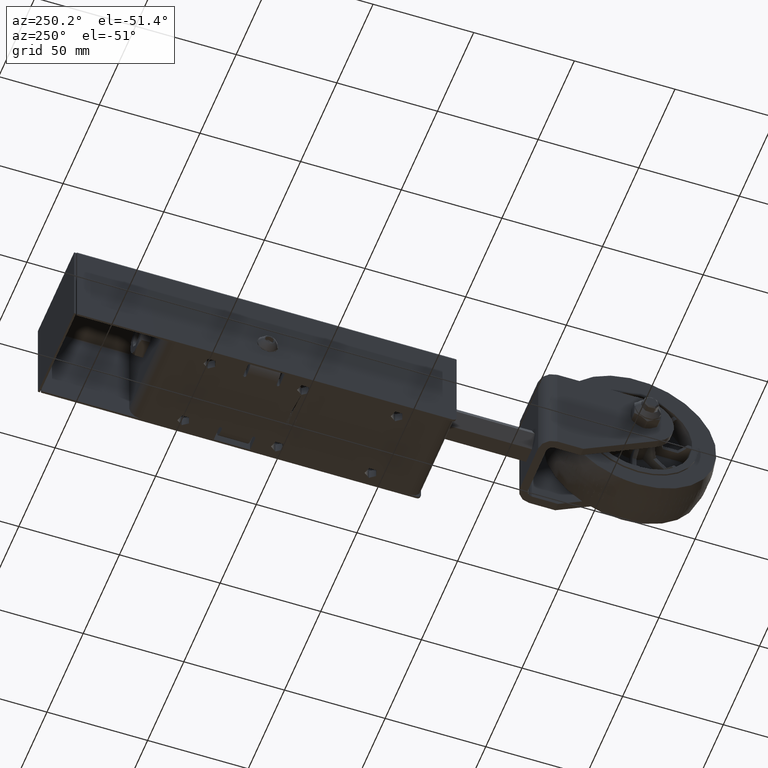
[diagram: clean part render]
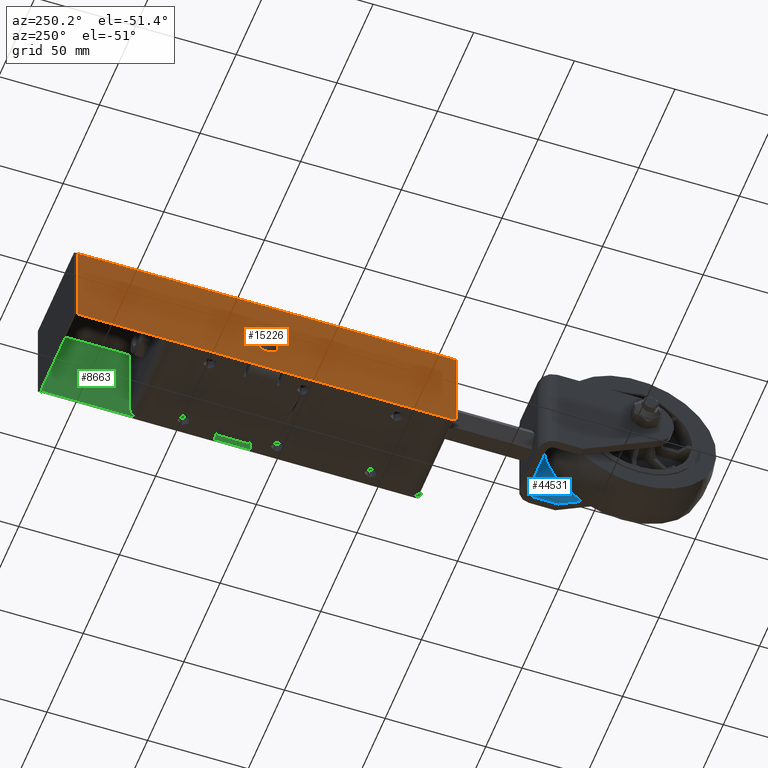
[diagram: same view with three faces highlighted in distinct colors, each labeled with its STEP entity id]
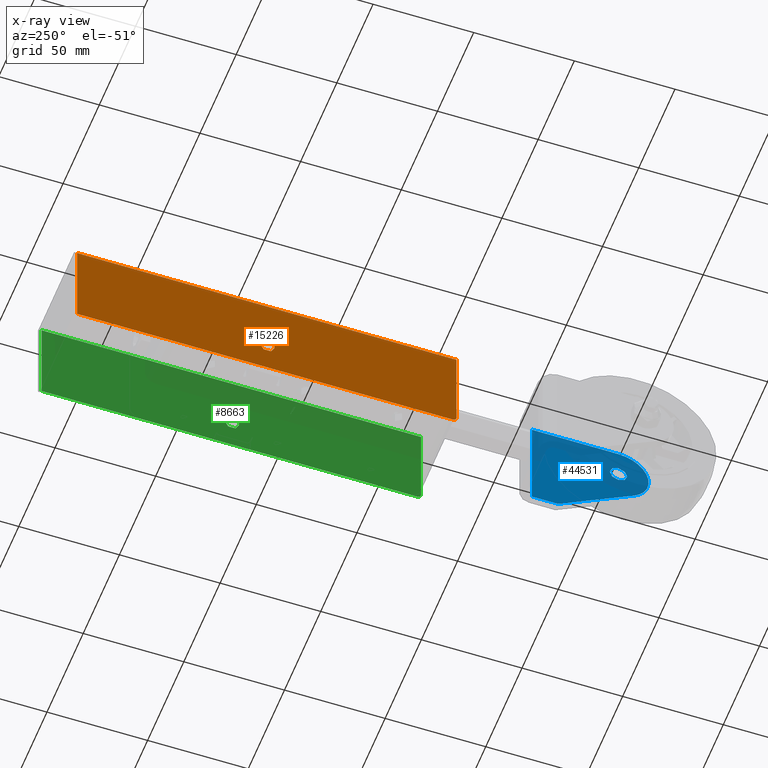
[diagram: x-ray of the same camera — body ghosted, the three highlighted faces saturated]
A machine part, auxiliary view with three faces highlighted in distinct colors.
The next image is the same camera in x-ray (body ghosted, the three faces saturated) — at least one of them is partly hidden behind the body in this view.
Their STEP definitions:

[orange] entity #15226 — the highlighted planar face has unit normal (1, -0, -0).
#41 = CARTESIAN_POINT ( 'NONE',  ( -25.00000000000000000, -95.00000000000000000, 9.020562075079396900E-014 ) ) ;
#667 = CARTESIAN_POINT ( 'NONE',  ( -25.00000000000000000, 93.50000000000000000, 6.245004513516505500E-014 ) ) ;
#1715 = DIRECTION ( 'NONE',  ( -3.469446951953613800E-015, -3.016910393003142400E-016, -1.000000000000000000 ) ) ;
#2481 = EDGE_CURVE ( 'NONE', #22862, #49787, #61392, .T. ) ;
#4393 = CARTESIAN_POINT ( 'NONE',  ( -25.00000000000021700, 2.549999999999996700, -30.05000000000017500 ) ) ;
#4629 = VERTEX_POINT ( 'NONE', #68141 ) ;
#4780 = DIRECTION ( 'NONE',  ( -1.000000000000000000, 4.770178037591663300E-031, 3.469446951953613800E-015 ) ) ;
#7338 = ORIENTED_EDGE ( 'NONE', *, *, #2481, .T. ) ;
#8439 = CARTESIAN_POINT ( 'NONE',  ( -25.00000000000000000, -95.00000000000000000, -0.4999999999999935100 ) ) ;
#8942 = CARTESIAN_POINT ( 'NONE',  ( -25.00000000000010700, -4.549999999999998900, -30.05000000000017500 ) ) ;
#9896 = VECTOR ( 'NONE', #39510, 1000.000000000000000 ) ;
#10057 = EDGE_CURVE ( 'NONE', #20653, #69182, #66241, .T. ) ;
#12592 = AXIS2_PLACEMENT_3D ( 'NONE', #18436, #25021, #13130 ) ;
#13130 = DIRECTION ( 'NONE',  ( 3.909236002201254400E-015, 0.0000000000000000000, -1.000000000000000000 ) ) ;
#13315 = VECTOR ( 'NONE', #45256, 1000.000000000000000 ) ;
#13935 = EDGE_CURVE ( 'NONE', #4629, #41953, #72574, .T. ) ;
#15226 = ADVANCED_FACE ( 'NONE', ( #43895, #61002 ), #63966, .F. ) ;
#18280 = AXIS2_PLACEMENT_3D ( 'NONE', #69297, #26829, #69823 ) ;
#18436 = CARTESIAN_POINT ( 'NONE',  ( -25.00000000000021700, -1.000000000000000900, -30.05000000000017800 ) ) ;
#19350 = ORIENTED_EDGE ( 'NONE', *, *, #34964, .T. ) ;
#20649 = VECTOR ( 'NONE', #78487, 1000.000000000000000 ) ;
#20653 = VERTEX_POINT ( 'NONE', #4393 ) ;
#22299 = VERTEX_POINT ( 'NONE', #59851 ) ;
#22535 = EDGE_LOOP ( 'NONE', ( #34271, #71550, #7338, #30661, #19350 ) ) ;
#22862 = VERTEX_POINT ( 'NONE', #71520 ) ;
#25021 = DIRECTION ( 'NONE',  ( 1.000000000000000000, 5.108567491743330500E-031, 3.469446951953613800E-015 ) ) ;
#26566 = LINE ( 'NONE', #8439, #13315 ) ;
#26829 = DIRECTION ( 'NONE',  ( 1.000000000000000000, -4.770178037591663300E-031, -3.469446951953613800E-015 ) ) ;
#27347 = VERTEX_POINT ( 'NONE', #43532 ) ;
#27743 = EDGE_LOOP ( 'NONE', ( #40878, #50758, #56109, #41837 ) ) ;
#28030 = CIRCLE ( 'NONE', #12592, 3.550000000000001200 ) ;
#28310 = CARTESIAN_POINT ( 'NONE',  ( -25.00000000000015300, -93.00000000000000000, -44.00000000000000000 ) ) ;
#29079 = LINE ( 'NONE', #667, #65159 ) ;
#29511 = EDGE_CURVE ( 'NONE', #41953, #20653, #28030, .T. ) ;
#29570 = CARTESIAN_POINT ( 'NONE',  ( -25.00000000000016000, 93.50000000000000000, -46.00000000000002800 ) ) ;
#30661 = ORIENTED_EDGE ( 'NONE', *, *, #59454, .F. ) ;
#32872 = CARTESIAN_POINT ( 'NONE',  ( -25.00000000000016000, -6.938893903907228400E-015, -46.00000000000001400 ) ) ;
#34271 = ORIENTED_EDGE ( 'NONE', *, *, #55324, .T. ) ;
#34964 = EDGE_CURVE ( 'NONE', #22299, #73614, #29079, .T. ) ;
#39510 = DIRECTION ( 'NONE',  ( 3.383894541516681100E-032, -1.000000000000000000, 1.472444329741587200E-016 ) ) ;
#40287 = VECTOR ( 'NONE', #54734, 1000.000000000000000 ) ;
#40574 = CIRCLE ( 'NONE', #72403, 3.549999999999997600 ) ;
#40878 = ORIENTED_EDGE ( 'NONE', *, *, #10057, .T. ) ;
#41837 = ORIENTED_EDGE ( 'NONE', *, *, #29511, .T. ) ;
#41953 = VERTEX_POINT ( 'NONE', #8942 ) ;
#42598 = CARTESIAN_POINT ( 'NONE',  ( -25.00000000000000000, -95.00000000000000000, -0.4999999999999935100 ) ) ;
#43532 = CARTESIAN_POINT ( 'NONE',  ( -25.00000000000016000, -93.00000000000000000, -46.00000000000000000 ) ) ;
#43895 = FACE_BOUND ( 'NONE', #27743, .T. ) ;
#45256 = DIRECTION ( 'NONE',  ( -3.001814823162472300E-032, -1.000000000000000000, 1.288388788523889100E-016 ) ) ;
#46230 = EDGE_CURVE ( 'NONE', #27347, #22862, #68690, .T. ) ;
#49227 = DIRECTION ( 'NONE',  ( 3.909236002201258300E-015, 0.0000000000000000000, -1.000000000000000000 ) ) ;
#49787 = VERTEX_POINT ( 'NONE', #42598 ) ;
#50730 = EDGE_CURVE ( 'NONE', #69182, #4629, #40574, .T. ) ;
#50758 = ORIENTED_EDGE ( 'NONE', *, *, #50730, .T. ) ;
#54734 = DIRECTION ( 'NONE',  ( 3.304235192336779100E-015, 0.0000000000000000000, -1.000000000000000000 ) ) ;
#55324 = EDGE_CURVE ( 'NONE', #73614, #27347, #76269, .T. ) ;
#56109 = ORIENTED_EDGE ( 'NONE', *, *, #13935, .T. ) ;
#59454 = EDGE_CURVE ( 'NONE', #22299, #49787, #26566, .T. ) ;
#59851 = CARTESIAN_POINT ( 'NONE',  ( -25.00000000000000000, 93.50000000000000000, -0.5000000000000213200 ) ) ;
#61002 = FACE_OUTER_BOUND ( 'NONE', #22535, .T. ) ;
#61392 = LINE ( 'NONE', #41, #20649 ) ;
#61435 = CARTESIAN_POINT ( 'NONE',  ( -25.00000000000022400, 2.549999999999996700, -27.95000000000017700 ) ) ;
#63966 = PLANE ( 'NONE',  #18280 ) ;
#64151 = DIRECTION ( 'NONE',  ( -3.469446951953611000E-015, 0.0000000000000000000, -1.000000000000000000 ) ) ;
#65159 = VECTOR ( 'NONE', #1715, 1000.000000000000000 ) ;
#65316 = VECTOR ( 'NONE', #74169, 1000.000000000000000 ) ;
#66241 = LINE ( 'NONE', #61435, #65316 ) ;
#68066 = CARTESIAN_POINT ( 'NONE',  ( -25.00000000000022400, -1.000000000000000900, -27.95000000000017700 ) ) ;
#68141 = CARTESIAN_POINT ( 'NONE',  ( -25.00000000000022400, -4.549999999999998900, -27.95000000000017700 ) ) ;
#68690 = CIRCLE ( 'NONE', #76182, 2.000000000000001800 ) ;
#69182 = VERTEX_POINT ( 'NONE', #69212 ) ;
#69212 = CARTESIAN_POINT ( 'NONE',  ( -25.00000000000022400, 2.549999999999996700, -27.95000000000017700 ) ) ;
#69297 = CARTESIAN_POINT ( 'NONE',  ( -25.00000000000000000, 0.0000000000000000000, 9.020562075079396900E-014 ) ) ;
#69823 = DIRECTION ( 'NONE',  ( -3.469446951953613800E-015, 0.0000000000000000000, -1.000000000000000000 ) ) ;
#71520 = CARTESIAN_POINT ( 'NONE',  ( -25.00000000000015300, -95.00000000000000000, -44.00000000000000000 ) ) ;
#71550 = ORIENTED_EDGE ( 'NONE', *, *, #46230, .T. ) ;
#72403 = AXIS2_PLACEMENT_3D ( 'NONE', #68066, #74407, #49227 ) ;
#72574 = LINE ( 'NONE', #72809, #40287 ) ;
#72809 = CARTESIAN_POINT ( 'NONE',  ( -25.00000000000022400, -4.549999999999998900, -27.95000000000017700 ) ) ;
#73614 = VERTEX_POINT ( 'NONE', #29570 ) ;
#74169 = DIRECTION ( 'NONE',  ( -3.304235192336779100E-015, -2.065146995210486900E-016, 1.000000000000000000 ) ) ;
#74407 = DIRECTION ( 'NONE',  ( 1.000000000000000000, 5.108567491743330500E-031, 3.469446951953613800E-015 ) ) ;
#76182 = AXIS2_PLACEMENT_3D ( 'NONE', #28310, #4780, #64151 ) ;
#76269 = LINE ( 'NONE', #32872, #9896 ) ;
#78487 = DIRECTION ( 'NONE',  ( 3.469446951953613800E-015, 0.0000000000000000000, 1.000000000000000000 ) ) ;

[blue] entity #44531 — the highlighted planar face has unit normal (1, -0, 0).
#493 = AXIS2_PLACEMENT_3D ( 'NONE', #2067, #45227, #8936 ) ;
#917 = VERTEX_POINT ( 'NONE', #30242 ) ;
#2067 = CARTESIAN_POINT ( 'NONE',  ( -18.55000000000000100, -50.00000000000001400, 15.50000000000000000 ) ) ;
#2743 = LINE ( 'NONE', #36869, #35996 ) ;
#3925 = ORIENTED_EDGE ( 'NONE', *, *, #6207, .F. ) ;
#4998 = DIRECTION ( 'NONE',  ( 0.0000000000000000000, 0.0000000000000000000, 1.000000000000000000 ) ) ;
#5034 = AXIS2_PLACEMENT_3D ( 'NONE', #16641, #4998, #28795 ) ;
#5114 = EDGE_CURVE ( 'NONE', #917, #24596, #63581, .T. ) ;
#6207 = EDGE_CURVE ( 'NONE', #24596, #18988, #51153, .T. ) ;
#8482 = DIRECTION ( 'NONE',  ( 1.000000000000000000, 0.0000000000000000000, 0.0000000000000000000 ) ) ;
#8936 = DIRECTION ( 'NONE',  ( 1.000000000000000000, 0.0000000000000000000, 0.0000000000000000000 ) ) ;
#13625 = CARTESIAN_POINT ( 'NONE',  ( 16.44999999999999600, -6.999999999999999100, 15.50000000000000000 ) ) ;
#16641 = CARTESIAN_POINT ( 'NONE',  ( -18.55000000000000100, -50.00000000000001400, 15.50000000000000000 ) ) ;
#18988 = VERTEX_POINT ( 'NONE', #57164 ) ;
#19379 = CARTESIAN_POINT ( 'NONE',  ( -33.55000000000000400, -50.00000000000001400, 15.50000000000000000 ) ) ;
#22677 = EDGE_CURVE ( 'NONE', #18988, #66774, #68466, .T. ) ;
#24445 = ORIENTED_EDGE ( 'NONE', *, *, #78081, .T. ) ;
#24596 = VERTEX_POINT ( 'NONE', #19379 ) ;
#24690 = CARTESIAN_POINT ( 'NONE',  ( -14.20000000000000300, -50.00000000000001400, 15.50000000000000000 ) ) ;
#25576 = EDGE_CURVE ( 'NONE', #66774, #52184, #2743, .T. ) ;
#26978 = CARTESIAN_POINT ( 'NONE',  ( -18.55000000000000100, -50.00000000000001400, 15.50000000000000000 ) ) ;
#27554 = ORIENTED_EDGE ( 'NONE', *, *, #5114, .F. ) ;
#27897 = EDGE_LOOP ( 'NONE', ( #24445 ) ) ;
#28756 = DIRECTION ( 'NONE',  ( 0.5061715907008166300, 0.8624327920292717000, 0.0000000000000000000 ) ) ;
#28795 = DIRECTION ( 'NONE',  ( 1.000000000000000000, 0.0000000000000000000, -0.0000000000000000000 ) ) ;
#29168 = DIRECTION ( 'NONE',  ( 1.000000000000000000, -0.0000000000000000000, -0.0000000000000000000 ) ) ;
#30242 = CARTESIAN_POINT ( 'NONE',  ( -33.55000000000001100, -7.000000000000000000, 15.50000000000000000 ) ) ;
#30483 = DIRECTION ( 'NONE',  ( 0.0000000000000000000, 1.000000000000000000, 0.0000000000000000000 ) ) ;
#35996 = VECTOR ( 'NONE', #30483, 1000.000000000000000 ) ;
#36869 = CARTESIAN_POINT ( 'NONE',  ( 16.44999999999999600, -20.00000000000000000, 15.50000000000000000 ) ) ;
#37459 = LINE ( 'NONE', #59615, #47862 ) ;
#40005 = VECTOR ( 'NONE', #28756, 1000.000000000000000 ) ;
#40849 = VECTOR ( 'NONE', #45206, 1000.000000000000000 ) ;
#41738 = FACE_BOUND ( 'NONE', #27897, .T. ) ;
#43852 = CARTESIAN_POINT ( 'NONE',  ( 16.44999999999999600, -20.00000000000000000, 15.50000000000000000 ) ) ;
#44531 = ADVANCED_FACE ( 'NONE', ( #75822, #41738 ), #65427, .F. ) ;
#45206 = DIRECTION ( 'NONE',  ( 1.387778780781445200E-016, -1.000000000000000000, 0.0000000000000000000 ) ) ;
#45227 = DIRECTION ( 'NONE',  ( 0.0000000000000000000, 0.0000000000000000000, 1.000000000000000000 ) ) ;
#47862 = VECTOR ( 'NONE', #29168, 1000.000000000000000 ) ;
#50849 = DIRECTION ( 'NONE',  ( 0.0000000000000000000, 0.0000000000000000000, 1.000000000000000000 ) ) ;
#51153 = CIRCLE ( 'NONE', #67174, 15.00000000000000400 ) ;
#52184 = VERTEX_POINT ( 'NONE', #13625 ) ;
#55801 = EDGE_LOOP ( 'NONE', ( #27554, #64463, #75939, #69201, #3925 ) ) ;
#56191 = CIRCLE ( 'NONE', #493, 4.349999999999997900 ) ;
#57164 = CARTESIAN_POINT ( 'NONE',  ( -5.613508119560923300, -57.59257386051226700, 15.50000000000000000 ) ) ;
#57662 = CARTESIAN_POINT ( 'NONE',  ( -5.613508119560925100, -57.59257386051226700, 15.50000000000000000 ) ) ;
#59615 = CARTESIAN_POINT ( 'NONE',  ( -18.55000000000000100, -6.999999999999999100, 15.50000000000000000 ) ) ;
#63581 = LINE ( 'NONE', #63739, #40849 ) ;
#63739 = CARTESIAN_POINT ( 'NONE',  ( -33.55000000000001100, 0.0000000000000000000, 15.50000000000000000 ) ) ;
#64463 = ORIENTED_EDGE ( 'NONE', *, *, #75631, .T. ) ;
#65427 = PLANE ( 'NONE',  #5034 ) ;
#66774 = VERTEX_POINT ( 'NONE', #43852 ) ;
#67174 = AXIS2_PLACEMENT_3D ( 'NONE', #26978, #50849, #8482 ) ;
#68466 = LINE ( 'NONE', #57662, #40005 ) ;
#69201 = ORIENTED_EDGE ( 'NONE', *, *, #22677, .F. ) ;
#69409 = VERTEX_POINT ( 'NONE', #24690 ) ;
#75631 = EDGE_CURVE ( 'NONE', #917, #52184, #37459, .T. ) ;
#75822 = FACE_OUTER_BOUND ( 'NONE', #55801, .T. ) ;
#75939 = ORIENTED_EDGE ( 'NONE', *, *, #25576, .F. ) ;
#78081 = EDGE_CURVE ( 'NONE', #69409, #69409, #56191, .T. ) ;

[green] entity #8663 — the highlighted planar face has unit normal (-1, -0, -0).
#80 = EDGE_CURVE ( 'NONE', #61148, #8105, #76790, .T. ) ;
#2222 = CARTESIAN_POINT ( 'NONE',  ( 24.00000000000016000, -95.00000000000000000, -46.00000000000000700 ) ) ;
#2371 = EDGE_CURVE ( 'NONE', #8105, #69077, #52883, .T. ) ;
#2635 = VECTOR ( 'NONE', #28249, 1000.000000000000000 ) ;
#2838 = EDGE_CURVE ( 'NONE', #69408, #74545, #36791, .T. ) ;
#3639 = VECTOR ( 'NONE', #65518, 1000.000000000000000 ) ;
#5264 = EDGE_LOOP ( 'NONE', ( #16493, #54454, #46053, #71267, #31851 ) ) ;
#5871 = EDGE_CURVE ( 'NONE', #69077, #7663, #50279, .T. ) ;
#6796 = LINE ( 'NONE', #76533, #11579 ) ;
#7557 = CARTESIAN_POINT ( 'NONE',  ( 24.00000000000016000, -93.00000000000000000, -46.00000000000000700 ) ) ;
#7663 = VERTEX_POINT ( 'NONE', #62234 ) ;
#8105 = VERTEX_POINT ( 'NONE', #66742 ) ;
#8663 = ADVANCED_FACE ( 'NONE', ( #46421, #14193 ), #51309, .T. ) ;
#8979 = VECTOR ( 'NONE', #26415, 1000.000000000000000 ) ;
#9227 = DIRECTION ( 'NONE',  ( -3.469446951953613800E-015, 0.0000000000000000000, 1.000000000000000000 ) ) ;
#9630 = EDGE_CURVE ( 'NONE', #51480, #69408, #45423, .T. ) ;
#11579 = VECTOR ( 'NONE', #28241, 1000.000000000000000 ) ;
#12007 = CIRCLE ( 'NONE', #41927, 2.000000000000001800 ) ;
#14193 = FACE_OUTER_BOUND ( 'NONE', #5264, .T. ) ;
#15844 = CARTESIAN_POINT ( 'NONE',  ( 24.00000000000000400, 93.50000000000000000, -0.5000000000000213200 ) ) ;
#16493 = ORIENTED_EDGE ( 'NONE', *, *, #39167, .F. ) ;
#17265 = DIRECTION ( 'NONE',  ( -1.000000000000000000, -5.108567491743330500E-031, -3.469446951953613800E-015 ) ) ;
#19818 = VECTOR ( 'NONE', #32875, 1000.000000000000000 ) ;
#21682 = ORIENTED_EDGE ( 'NONE', *, *, #80, .F. ) ;
#22698 = EDGE_CURVE ( 'NONE', #7663, #61148, #6796, .T. ) ;
#23604 = ORIENTED_EDGE ( 'NONE', *, *, #22698, .F. ) ;
#24891 = CARTESIAN_POINT ( 'NONE',  ( 24.00000000000009600, -1.000000000000000900, -27.95000000000000600 ) ) ;
#26412 = DIRECTION ( 'NONE',  ( -1.000000000000000000, -5.108567491743330500E-031, -3.469446951953613800E-015 ) ) ;
#26415 = DIRECTION ( 'NONE',  ( 8.758115402030106700E-047, 1.000000000000000000, -1.472444329741587200E-016 ) ) ;
#27275 = CARTESIAN_POINT ( 'NONE',  ( 24.00000000000009600, -4.549999999999998900, -27.95000000000000600 ) ) ;
#28241 = DIRECTION ( 'NONE',  ( 3.469446951953613800E-015, 2.065146995210486900E-016, -1.000000000000000000 ) ) ;
#28249 = DIRECTION ( 'NONE',  ( 6.385709364679144500E-032, -1.000000000000000000, 1.288388788523889100E-016 ) ) ;
#29166 = AXIS2_PLACEMENT_3D ( 'NONE', #44979, #26412, #9227 ) ;
#30933 = EDGE_CURVE ( 'NONE', #74545, #62062, #45018, .T. ) ;
#31617 = DIRECTION ( 'NONE',  ( 3.469446951953613800E-015, -0.0000000000000000000, -1.000000000000000000 ) ) ;
#31851 = ORIENTED_EDGE ( 'NONE', *, *, #9630, .F. ) ;
#32875 = DIRECTION ( 'NONE',  ( -3.469446951953613800E-015, -0.0000000000000000000, 1.000000000000000000 ) ) ;
#36503 = VERTEX_POINT ( 'NONE', #7557 ) ;
#36535 = VECTOR ( 'NONE', #31617, 1000.000000000000000 ) ;
#36791 = LINE ( 'NONE', #15844, #2635 ) ;
#37169 = CARTESIAN_POINT ( 'NONE',  ( 24.00000000000009200, 2.549999999999996700, -30.05000000000000400 ) ) ;
#37679 = AXIS2_PLACEMENT_3D ( 'NONE', #24891, #49283, #73433 ) ;
#38496 = DIRECTION ( 'NONE',  ( -3.909236002201258300E-015, 0.0000000000000000000, 1.000000000000000000 ) ) ;
#38890 = EDGE_LOOP ( 'NONE', ( #72222, #77304, #21682, #23604 ) ) ;
#39167 = EDGE_CURVE ( 'NONE', #36503, #51480, #72515, .T. ) ;
#41927 = AXIS2_PLACEMENT_3D ( 'NONE', #71371, #17265, #47452 ) ;
#43933 = CARTESIAN_POINT ( 'NONE',  ( 24.00000000000000000, -95.00000000000000000, -0.5000000000000004400 ) ) ;
#44021 = AXIS2_PLACEMENT_3D ( 'NONE', #69238, #56728, #38496 ) ;
#44979 = CARTESIAN_POINT ( 'NONE',  ( 24.00000000000000000, 0.0000000000000000000, 9.020562075079396900E-014 ) ) ;
#45018 = LINE ( 'NONE', #2222, #36535 ) ;
#45423 = LINE ( 'NONE', #51141, #19818 ) ;
#46053 = ORIENTED_EDGE ( 'NONE', *, *, #30933, .F. ) ;
#46421 = FACE_BOUND ( 'NONE', #38890, .T. ) ;
#47452 = DIRECTION ( 'NONE',  ( -3.469446951953611000E-015, 0.0000000000000000000, 1.000000000000000000 ) ) ;
#49283 = DIRECTION ( 'NONE',  ( -1.000000000000000000, -5.108567491743330500E-031, -3.469446951953613800E-015 ) ) ;
#50279 = CIRCLE ( 'NONE', #37679, 3.549999999999997600 ) ;
#51141 = CARTESIAN_POINT ( 'NONE',  ( 24.00000000000000000, 93.50000000000000000, -2.775557561562891400E-014 ) ) ;
#51309 = PLANE ( 'NONE',  #29166 ) ;
#51480 = VERTEX_POINT ( 'NONE', #77723 ) ;
#52480 = EDGE_CURVE ( 'NONE', #36503, #62062, #12007, .T. ) ;
#52883 = LINE ( 'NONE', #65788, #3639 ) ;
#54454 = ORIENTED_EDGE ( 'NONE', *, *, #52480, .T. ) ;
#56728 = DIRECTION ( 'NONE',  ( -1.000000000000000000, -5.108567491743330500E-031, -3.469446951953613800E-015 ) ) ;
#61148 = VERTEX_POINT ( 'NONE', #37169 ) ;
#62062 = VERTEX_POINT ( 'NONE', #62348 ) ;
#62234 = CARTESIAN_POINT ( 'NONE',  ( 24.00000000000009600, 2.549999999999996700, -27.95000000000000600 ) ) ;
#62348 = CARTESIAN_POINT ( 'NONE',  ( 24.00000000000015300, -95.00000000000000000, -44.00000000000000700 ) ) ;
#65518 = DIRECTION ( 'NONE',  ( -3.469446951953613800E-015, -8.439954244322772400E-047, 1.000000000000000000 ) ) ;
#65788 = CARTESIAN_POINT ( 'NONE',  ( 24.00000000000000000, -4.549999999999998900, 9.020562075079396900E-014 ) ) ;
#66742 = CARTESIAN_POINT ( 'NONE',  ( 24.00000000000010300, -4.549999999999998900, -30.05000000000017500 ) ) ;
#67305 = CARTESIAN_POINT ( 'NONE',  ( 24.00000000000000000, 93.50000000000000000, -0.5000000000000213200 ) ) ;
#67829 = CARTESIAN_POINT ( 'NONE',  ( 24.00000000000016000, 93.50000000000000000, -46.00000000000003600 ) ) ;
#69077 = VERTEX_POINT ( 'NONE', #27275 ) ;
#69238 = CARTESIAN_POINT ( 'NONE',  ( 24.00000000000010300, -1.000000000000000900, -30.05000000000000800 ) ) ;
#69408 = VERTEX_POINT ( 'NONE', #67305 ) ;
#71267 = ORIENTED_EDGE ( 'NONE', *, *, #2838, .F. ) ;
#71371 = CARTESIAN_POINT ( 'NONE',  ( 24.00000000000015300, -93.00000000000000000, -44.00000000000000700 ) ) ;
#72222 = ORIENTED_EDGE ( 'NONE', *, *, #5871, .F. ) ;
#72515 = LINE ( 'NONE', #67829, #8979 ) ;
#73433 = DIRECTION ( 'NONE',  ( -3.909236002201258300E-015, 0.0000000000000000000, 1.000000000000000000 ) ) ;
#74545 = VERTEX_POINT ( 'NONE', #43933 ) ;
#76533 = CARTESIAN_POINT ( 'NONE',  ( 24.00000000000000000, 2.549999999999993200, 9.020562075079396900E-014 ) ) ;
#76790 = CIRCLE ( 'NONE', #44021, 3.549999999999997600 ) ;
#77304 = ORIENTED_EDGE ( 'NONE', *, *, #2371, .F. ) ;
#77723 = CARTESIAN_POINT ( 'NONE',  ( 24.00000000000016000, 93.50000000000000000, -46.00000000000003600 ) ) ;